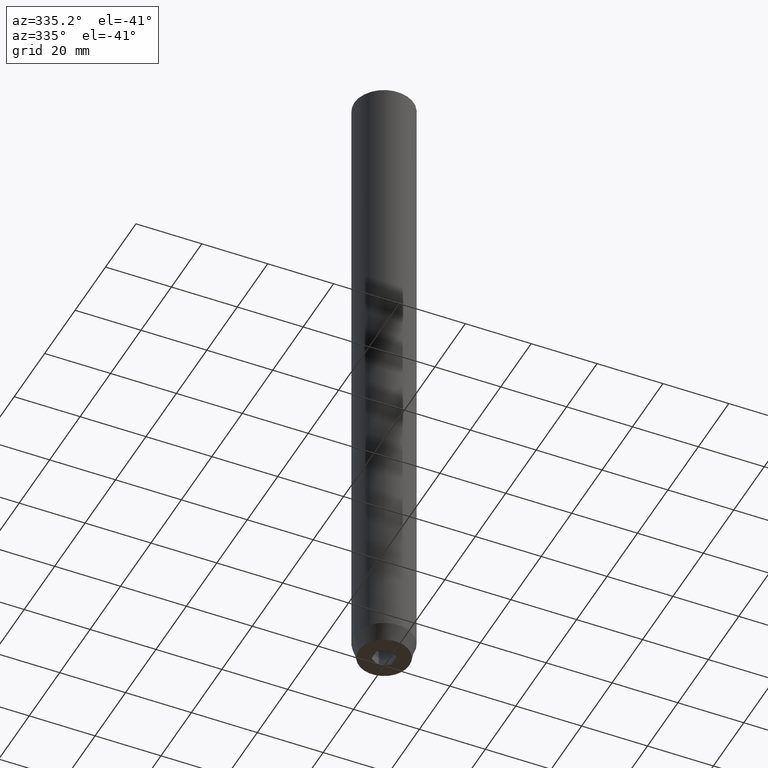
[diagram: clean part render]
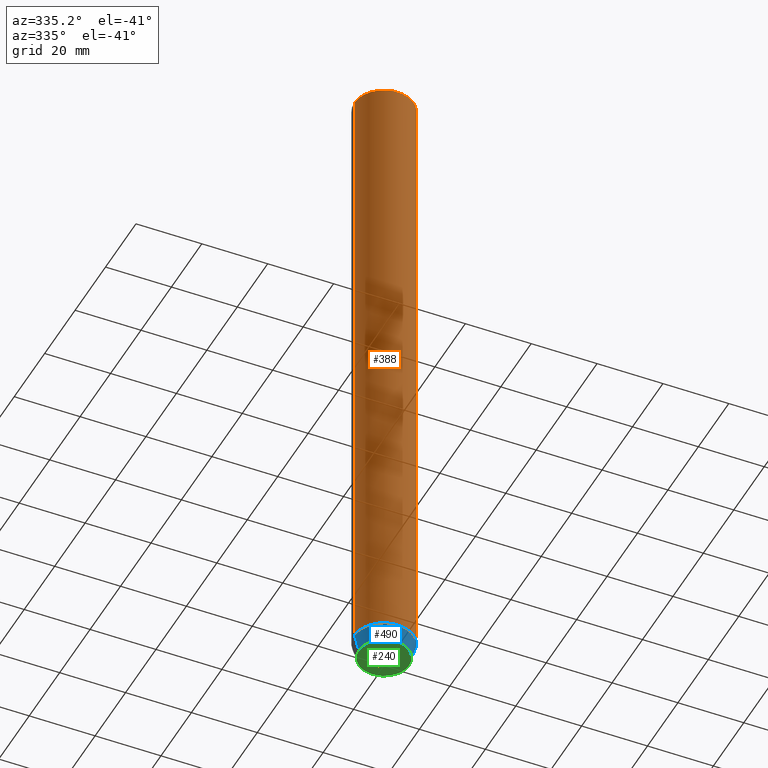
[diagram: same view with three faces highlighted in distinct colors, each labeled with its STEP entity id]
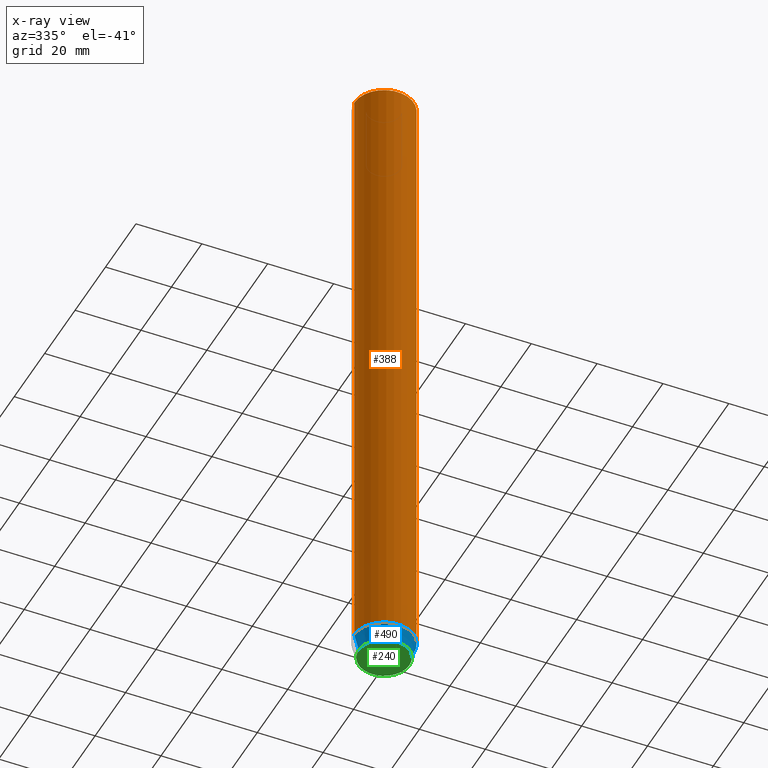
[diagram: x-ray of the same camera — body ghosted, the three highlighted faces saturated]
A machine part, auxiliary view with three faces highlighted in distinct colors.
The next image is the same camera in x-ray (body ghosted, the three faces saturated) — at least one of them is partly hidden behind the body in this view.
Their STEP definitions:

[orange] entity #388 — the highlighted cylindrical surface (edge-blend (fillet) strip) has radius 9 mm, axis along (-0, -0, 1).
#1 = AXIS2_PLACEMENT_3D ( 'NONE', #611, #372, #420 ) ;
#6 = VERTEX_POINT ( 'NONE', #570 ) ;
#47 = VECTOR ( 'NONE', #538, 1000.000000000000000 ) ;
#77 = EDGE_LOOP ( 'NONE', ( #360, #582, #380, #305 ) ) ;
#84 = EDGE_CURVE ( 'NONE', #96, #331, #123, .T. ) ;
#96 = VERTEX_POINT ( 'NONE', #587 ) ;
#123 = CIRCLE ( 'NONE', #535, 9.000000000000000000 ) ;
#125 = EDGE_CURVE ( 'NONE', #6, #505, #368, .T. ) ;
#131 = DIRECTION ( 'NONE',  ( -0.000000000000000000, -0.000000000000000000, 1.000000000000000000 ) ) ;
#174 = CARTESIAN_POINT ( 'NONE',  ( -9.000000000000000000, 1.102182119232617714E-15, 0.000000000000000000 ) ) ;
#186 = EDGE_CURVE ( 'NONE', #331, #6, #589, .T. ) ;
#190 = DIRECTION ( 'NONE',  ( 0.000000000000000000, 0.000000000000000000, -1.000000000000000000 ) ) ;
#305 = ORIENTED_EDGE ( 'NONE', *, *, #125, .T. ) ;
#317 = CARTESIAN_POINT ( 'NONE',  ( 9.000000000000000000, 0.000000000000000000, -195.0000000000000000 ) ) ;
#318 = FACE_OUTER_BOUND ( 'NONE', #77, .T. ) ;
#331 = VERTEX_POINT ( 'NONE', #317 ) ;
#343 = VECTOR ( 'NONE', #131, 1000.000000000000000 ) ;
#360 = ORIENTED_EDGE ( 'NONE', *, *, #509, .F. ) ;
#368 = CIRCLE ( 'NONE', #486, 9.000000000000000000 ) ;
#372 = DIRECTION ( 'NONE',  ( -0.000000000000000000, -0.000000000000000000, 1.000000000000000000 ) ) ;
#380 = ORIENTED_EDGE ( 'NONE', *, *, #186, .T. ) ;
#388 = ADVANCED_FACE ( 'NONE', ( #318 ), #511, .T. ) ;
#420 = DIRECTION ( 'NONE',  ( 1.000000000000000000, 0.000000000000000000, 0.000000000000000000 ) ) ;
#427 = CARTESIAN_POINT ( 'NONE',  ( 0.000000000000000000, 0.000000000000000000, -195.0000000000000000 ) ) ;
#473 = CARTESIAN_POINT ( 'NONE',  ( -9.000000000000000000, 1.102182119232617714E-15, -0.4999999999999952260 ) ) ;
#479 = DIRECTION ( 'NONE',  ( -0.000000000000000000, -0.000000000000000000, 1.000000000000000000 ) ) ;
#482 = DIRECTION ( 'NONE',  ( 1.000000000000000000, 0.000000000000000000, 0.000000000000000000 ) ) ;
#486 = AXIS2_PLACEMENT_3D ( 'NONE', #634, #190, #635 ) ;
#505 = VERTEX_POINT ( 'NONE', #473 ) ;
#509 = EDGE_CURVE ( 'NONE', #96, #505, #619, .T. ) ;
#511 = CYLINDRICAL_SURFACE ( 'NONE', #1, 9.000000000000000000 ) ;
#535 = AXIS2_PLACEMENT_3D ( 'NONE', #427, #479, #482 ) ;
#538 = DIRECTION ( 'NONE',  ( -0.000000000000000000, -0.000000000000000000, 1.000000000000000000 ) ) ;
#542 = CARTESIAN_POINT ( 'NONE',  ( 9.000000000000000000, 0.000000000000000000, 0.000000000000000000 ) ) ;
#570 = CARTESIAN_POINT ( 'NONE',  ( 9.000000000000000000, 0.000000000000000000, -0.4999999999999952260 ) ) ;
#582 = ORIENTED_EDGE ( 'NONE', *, *, #84, .T. ) ;
#587 = CARTESIAN_POINT ( 'NONE',  ( -9.000000000000000000, 1.102182119232617714E-15, -195.0000000000000000 ) ) ;
#589 = LINE ( 'NONE', #542, #47 ) ;
#611 = CARTESIAN_POINT ( 'NONE',  ( 0.000000000000000000, 0.000000000000000000, 0.000000000000000000 ) ) ;
#619 = LINE ( 'NONE', #174, #343 ) ;
#634 = CARTESIAN_POINT ( 'NONE',  ( 0.000000000000000000, 0.000000000000000000, -0.4999999999999952260 ) ) ;
#635 = DIRECTION ( 'NONE',  ( 1.000000000000000000, 0.000000000000000000, 0.000000000000000000 ) ) ;

[blue] entity #490 — the highlighted conical surface has half-angle 15 deg.
#16 = VECTOR ( 'NONE', #206, 1000.000000000000114 ) ;
#27 = DIRECTION ( 'NONE',  ( -0.000000000000000000, -0.000000000000000000, 1.000000000000000000 ) ) ;
#45 = VECTOR ( 'NONE', #558, 1000.000000000000114 ) ;
#53 = EDGE_CURVE ( 'NONE', #59, #465, #540, .T. ) ;
#59 = VERTEX_POINT ( 'NONE', #377 ) ;
#75 = DIRECTION ( 'NONE',  ( 1.000000000000000000, 0.000000000000000000, 0.000000000000000000 ) ) ;
#83 = FACE_OUTER_BOUND ( 'NONE', #185, .T. ) ;
#84 = EDGE_CURVE ( 'NONE', #96, #331, #123, .T. ) ;
#85 = CARTESIAN_POINT ( 'NONE',  ( 0.000000000000000000, 0.000000000000000000, -200.0000000000000000 ) ) ;
#96 = VERTEX_POINT ( 'NONE', #587 ) ;
#107 = ORIENTED_EDGE ( 'NONE', *, *, #84, .F. ) ;
#119 = CARTESIAN_POINT ( 'NONE',  ( 0.000000000000000000, 0.000000000000000000, -195.0000000000000000 ) ) ;
#123 = CIRCLE ( 'NONE', #535, 9.000000000000000000 ) ;
#146 = CONICAL_SURFACE ( 'NONE', #234, 9.000000000000000000, 0.2617993877991502405 ) ;
#152 = ORIENTED_EDGE ( 'NONE', *, *, #442, .F. ) ;
#185 = EDGE_LOOP ( 'NONE', ( #152, #378, #499, #107 ) ) ;
#199 = LINE ( 'NONE', #257, #16 ) ;
#206 = DIRECTION ( 'NONE',  ( 0.2588190451025214611, 0.000000000000000000, 0.9659258262890679791 ) ) ;
#213 = CARTESIAN_POINT ( 'NONE',  ( -9.000000000000000000, 1.102182119232617714E-15, -195.0000000000000000 ) ) ;
#221 = CARTESIAN_POINT ( 'NONE',  ( 7.660254037844380193, 0.000000000000000000, -200.0000000000000000 ) ) ;
#234 = AXIS2_PLACEMENT_3D ( 'NONE', #119, #467, #75 ) ;
#257 = CARTESIAN_POINT ( 'NONE',  ( 9.000000000000000000, 0.000000000000000000, -195.0000000000000000 ) ) ;
#317 = CARTESIAN_POINT ( 'NONE',  ( 9.000000000000000000, 0.000000000000000000, -195.0000000000000000 ) ) ;
#331 = VERTEX_POINT ( 'NONE', #317 ) ;
#341 = AXIS2_PLACEMENT_3D ( 'NONE', #85, #27, #623 ) ;
#377 = CARTESIAN_POINT ( 'NONE',  ( -7.660254037844380193, 1.020146339021394272E-15, -200.0000000000000000 ) ) ;
#378 = ORIENTED_EDGE ( 'NONE', *, *, #53, .T. ) ;
#427 = CARTESIAN_POINT ( 'NONE',  ( 0.000000000000000000, 0.000000000000000000, -195.0000000000000000 ) ) ;
#442 = EDGE_CURVE ( 'NONE', #59, #96, #507, .T. ) ;
#465 = VERTEX_POINT ( 'NONE', #221 ) ;
#467 = DIRECTION ( 'NONE',  ( -0.000000000000000000, -0.000000000000000000, 1.000000000000000000 ) ) ;
#479 = DIRECTION ( 'NONE',  ( -0.000000000000000000, -0.000000000000000000, 1.000000000000000000 ) ) ;
#482 = DIRECTION ( 'NONE',  ( 1.000000000000000000, 0.000000000000000000, 0.000000000000000000 ) ) ;
#490 = ADVANCED_FACE ( 'NONE', ( #83 ), #146, .T. ) ;
#499 = ORIENTED_EDGE ( 'NONE', *, *, #580, .T. ) ;
#507 = LINE ( 'NONE', #213, #45 ) ;
#535 = AXIS2_PLACEMENT_3D ( 'NONE', #427, #479, #482 ) ;
#540 = CIRCLE ( 'NONE', #341, 7.660254037844380193 ) ;
#558 = DIRECTION ( 'NONE',  ( -0.2588190451025214611, 3.169619151431774186E-17, 0.9659258262890679791 ) ) ;
#580 = EDGE_CURVE ( 'NONE', #465, #331, #199, .T. ) ;
#587 = CARTESIAN_POINT ( 'NONE',  ( -9.000000000000000000, 1.102182119232617714E-15, -195.0000000000000000 ) ) ;
#623 = DIRECTION ( 'NONE',  ( 1.000000000000000000, 0.000000000000000000, 0.000000000000000000 ) ) ;

[green] entity #240 — the highlighted planar face has unit normal (0, 0, -1).
#8 = DIRECTION ( 'NONE',  ( 0.8660254037844387076, -0.4999999999999997780, 0.000000000000000000 ) ) ;
#9 = ORIENTED_EDGE ( 'NONE', *, *, #29, .F. ) ;
#21 = FACE_BOUND ( 'NONE', #282, .T. ) ;
#26 = DIRECTION ( 'NONE',  ( -2.503857664561932376E-16, -1.000000000000000000, 0.000000000000000000 ) ) ;
#27 = DIRECTION ( 'NONE',  ( -0.000000000000000000, -0.000000000000000000, 1.000000000000000000 ) ) ;
#29 = EDGE_CURVE ( 'NONE', #35, #577, #273, .T. ) ;
#35 = VERTEX_POINT ( 'NONE', #417 ) ;
#41 = VECTOR ( 'NONE', #290, 1000.000000000000114 ) ;
#53 = EDGE_CURVE ( 'NONE', #59, #465, #540, .T. ) ;
#59 = VERTEX_POINT ( 'NONE', #377 ) ;
#65 = CARTESIAN_POINT ( 'NONE',  ( -3.000000000000000888, -1.732050807568876527, -200.0000000000000000 ) ) ;
#67 = DIRECTION ( 'NONE',  ( -0.000000000000000000, -0.000000000000000000, 1.000000000000000000 ) ) ;
#85 = CARTESIAN_POINT ( 'NONE',  ( 0.000000000000000000, 0.000000000000000000, -200.0000000000000000 ) ) ;
#101 = EDGE_CURVE ( 'NONE', #434, #485, #145, .T. ) ;
#108 = VECTOR ( 'NONE', #400, 1000.000000000000114 ) ;
#118 = CARTESIAN_POINT ( 'NONE',  ( 0.000000000000000000, 7.660254037844380193, -200.0000000000000000 ) ) ;
#126 = DIRECTION ( 'NONE',  ( 0.000000000000000000, 0.000000000000000000, -1.000000000000000000 ) ) ;
#134 = CARTESIAN_POINT ( 'NONE',  ( 1.499999999999999556, -2.598076211353316012, -200.0000000000000000 ) ) ;
#145 = LINE ( 'NONE', #340, #41 ) ;
#150 = DIRECTION ( 'NONE',  ( 2.503857664561932376E-16, 1.000000000000000000, 0.000000000000000000 ) ) ;
#151 = LINE ( 'NONE', #468, #197 ) ;
#159 = CARTESIAN_POINT ( 'NONE',  ( 0.000000000000000000, 0.000000000000000000, -200.0000000000000000 ) ) ;
#188 = AXIS2_PLACEMENT_3D ( 'NONE', #159, #67, #606 ) ;
#197 = VECTOR ( 'NONE', #8, 1000.000000000000114 ) ;
#211 = EDGE_CURVE ( 'NONE', #572, #434, #246, .T. ) ;
#221 = CARTESIAN_POINT ( 'NONE',  ( 7.660254037844380193, 0.000000000000000000, -200.0000000000000000 ) ) ;
#236 = VERTEX_POINT ( 'NONE', #248 ) ;
#240 = ADVANCED_FACE ( 'NONE', ( #21, #419 ), #371, .T. ) ;
#246 = LINE ( 'NONE', #639, #447 ) ;
#248 = CARTESIAN_POINT ( 'NONE',  ( 3.000000000000000000, 1.732050807568877193, -200.0000000000000000 ) ) ;
#264 = LINE ( 'NONE', #410, #529 ) ;
#273 = LINE ( 'NONE', #134, #601 ) ;
#277 = ORIENTED_EDGE ( 'NONE', *, *, #459, .F. ) ;
#279 = DIRECTION ( 'NONE',  ( -0.8660254037844387076, -0.4999999999999999445, 0.000000000000000000 ) ) ;
#282 = EDGE_LOOP ( 'NONE', ( #302, #412, #545, #9, #277, #329 ) ) ;
#286 = EDGE_LOOP ( 'NONE', ( #429, #287 ) ) ;
#287 = ORIENTED_EDGE ( 'NONE', *, *, #53, .F. ) ;
#290 = DIRECTION ( 'NONE',  ( 0.8660254037844387076, 0.4999999999999997224, 0.000000000000000000 ) ) ;
#302 = ORIENTED_EDGE ( 'NONE', *, *, #101, .F. ) ;
#329 = ORIENTED_EDGE ( 'NONE', *, *, #536, .F. ) ;
#340 = CARTESIAN_POINT ( 'NONE',  ( -1.499999999999999334, 2.598076211353316456, -200.0000000000000000 ) ) ;
#341 = AXIS2_PLACEMENT_3D ( 'NONE', #85, #27, #623 ) ;
#367 = CARTESIAN_POINT ( 'NONE',  ( -3.000000000000000000, 1.732050807568877859, -200.0000000000000000 ) ) ;
#371 = PLANE ( 'NONE',  #574 ) ;
#377 = CARTESIAN_POINT ( 'NONE',  ( -7.660254037844380193, 1.020146339021394272E-15, -200.0000000000000000 ) ) ;
#394 = EDGE_CURVE ( 'NONE', #465, #59, #478, .T. ) ;
#400 = DIRECTION ( 'NONE',  ( -0.8660254037844387076, 0.4999999999999997780, 0.000000000000000000 ) ) ;
#410 = CARTESIAN_POINT ( 'NONE',  ( 2.999999999999999556, -7.511572993685796142E-16, -200.0000000000000000 ) ) ;
#411 = LINE ( 'NONE', #594, #108 ) ;
#412 = ORIENTED_EDGE ( 'NONE', *, *, #211, .F. ) ;
#417 = CARTESIAN_POINT ( 'NONE',  ( 2.999999999999999112, -1.732050807568876971, -200.0000000000000000 ) ) ;
#419 = FACE_OUTER_BOUND ( 'NONE', #286, .T. ) ;
#429 = ORIENTED_EDGE ( 'NONE', *, *, #394, .F. ) ;
#434 = VERTEX_POINT ( 'NONE', #367 ) ;
#447 = VECTOR ( 'NONE', #150, 1000.000000000000000 ) ;
#459 = EDGE_CURVE ( 'NONE', #236, #35, #264, .T. ) ;
#465 = VERTEX_POINT ( 'NONE', #221 ) ;
#468 = CARTESIAN_POINT ( 'NONE',  ( 1.499999999999999112, 2.598076211353316012, -200.0000000000000000 ) ) ;
#478 = CIRCLE ( 'NONE', #188, 7.660254037844380193 ) ;
#485 = VERTEX_POINT ( 'NONE', #564 ) ;
#529 = VECTOR ( 'NONE', #26, 1000.000000000000000 ) ;
#536 = EDGE_CURVE ( 'NONE', #485, #236, #151, .T. ) ;
#540 = CIRCLE ( 'NONE', #341, 7.660254037844380193 ) ;
#545 = ORIENTED_EDGE ( 'NONE', *, *, #585, .F. ) ;
#551 = CARTESIAN_POINT ( 'NONE',  ( 0.000000000000000000, -3.464101615137753942, -200.0000000000000000 ) ) ;
#564 = CARTESIAN_POINT ( 'NONE',  ( 2.168404344971008868E-16, 3.464101615137755275, -200.0000000000000000 ) ) ;
#572 = VERTEX_POINT ( 'NONE', #65 ) ;
#574 = AXIS2_PLACEMENT_3D ( 'NONE', #118, #126, #625 ) ;
#577 = VERTEX_POINT ( 'NONE', #551 ) ;
#585 = EDGE_CURVE ( 'NONE', #577, #572, #411, .T. ) ;
#594 = CARTESIAN_POINT ( 'NONE',  ( -1.499999999999999112, -2.598076211353316012, -200.0000000000000000 ) ) ;
#601 = VECTOR ( 'NONE', #279, 999.9999999999998863 ) ;
#606 = DIRECTION ( 'NONE',  ( 1.000000000000000000, 0.000000000000000000, 0.000000000000000000 ) ) ;
#623 = DIRECTION ( 'NONE',  ( 1.000000000000000000, 0.000000000000000000, 0.000000000000000000 ) ) ;
#625 = DIRECTION ( 'NONE',  ( -1.000000000000000000, 0.000000000000000000, -0.000000000000000000 ) ) ;
#639 = CARTESIAN_POINT ( 'NONE',  ( -3.000000000000000444, 7.511572993685798115E-16, -200.0000000000000000 ) ) ;